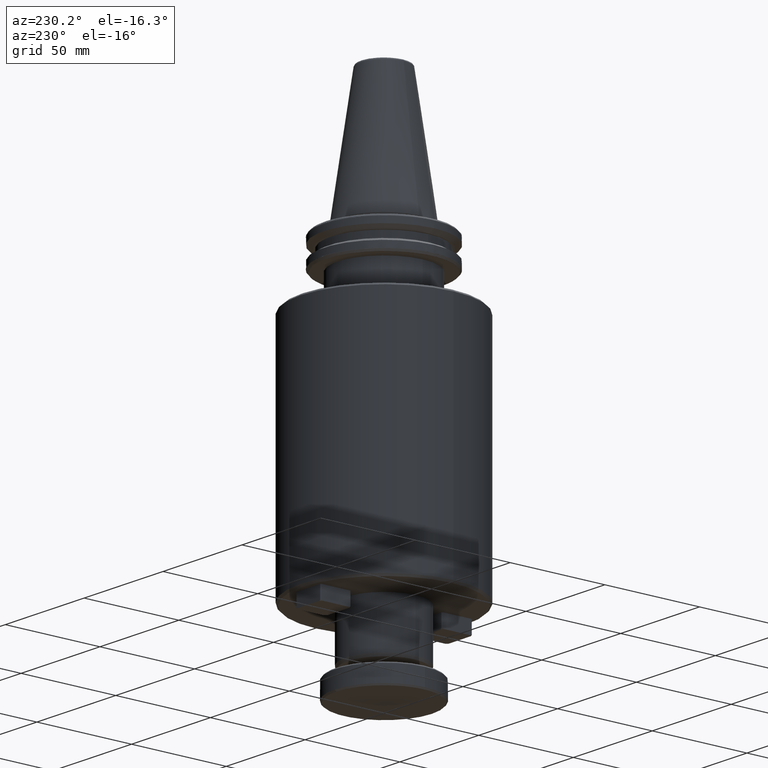
[diagram: clean part render]
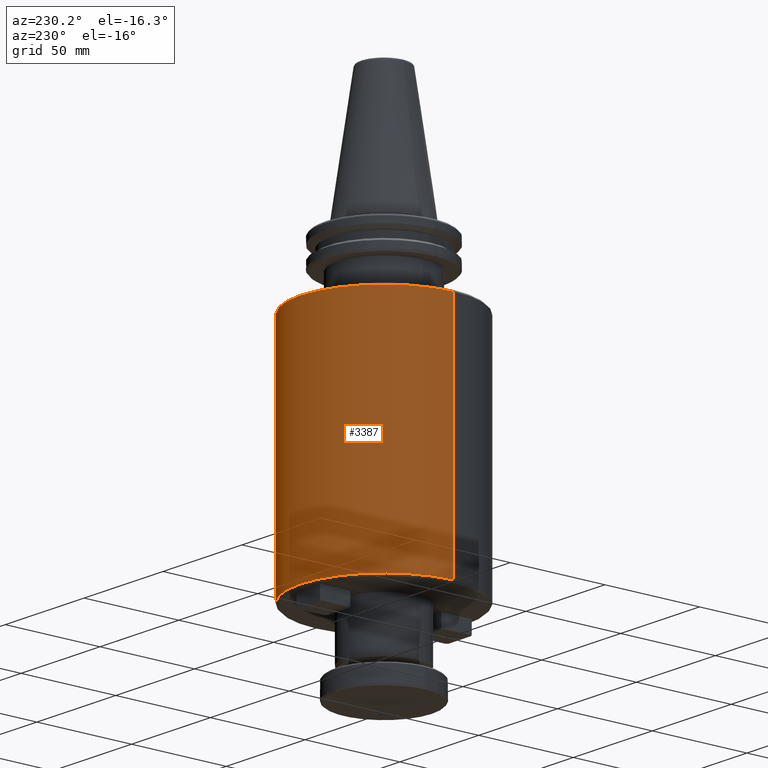
[diagram: same view with one face highlighted and labeled with its STEP entity id]
A machine part, auxiliary view. The second image highlights one B-rep face of the part: STEP entity #3387.
In plain terms, the highlighted cylindrical surface (partial cylindrical patch) has radius 44 mm, axis along (0, 0, 1).
Its self-contained STEP definition (entity closure, byte-faithful):
#211 = CYLINDRICAL_SURFACE ( 'NONE', #654, 44.00000000000000000 ) ;
#320 = CIRCLE ( 'NONE', #1110, 44.00000000000000000 ) ;
#469 = LINE ( 'NONE', #2066, #1126 ) ;
#535 = EDGE_CURVE ( 'NONE', #3262, #1514, #3945, .T. ) ;
#625 = DIRECTION ( 'NONE',  ( 0.0000000000000000000, 0.0000000000000000000, 1.000000000000000000 ) ) ;
#654 = AXIS2_PLACEMENT_3D ( 'NONE', #2881, #1214, #2553 ) ;
#673 = EDGE_CURVE ( 'NONE', #926, #1514, #320, .T. ) ;
#926 = VERTEX_POINT ( 'NONE', #3202 ) ;
#945 = AXIS2_PLACEMENT_3D ( 'NONE', #2651, #625, #2979 ) ;
#1095 = EDGE_LOOP ( 'NONE', ( #3398, #1834, #2340, #4142 ) ) ;
#1110 = AXIS2_PLACEMENT_3D ( 'NONE', #4039, #4032, #3821 ) ;
#1126 = VECTOR ( 'NONE', #3044, 1000.000000000000000 ) ;
#1214 = DIRECTION ( 'NONE',  ( 0.0000000000000000000, 0.0000000000000000000, 1.000000000000000000 ) ) ;
#1486 = VERTEX_POINT ( 'NONE', #1693 ) ;
#1514 = VERTEX_POINT ( 'NONE', #1673 ) ;
#1673 = CARTESIAN_POINT ( 'NONE',  ( 44.00000000000000000, 5.388445916248353600E-015, -37.00000000000000700 ) ) ;
#1693 = CARTESIAN_POINT ( 'NONE',  ( -44.00000000000001400, 5.388445916248355200E-015, -159.0000000000000000 ) ) ;
#1834 = ORIENTED_EDGE ( 'NONE', *, *, #3906, .T. ) ;
#2066 = CARTESIAN_POINT ( 'NONE',  ( -44.00000000000000000, 5.388445916248353600E-015, 82.95681253582424100 ) ) ;
#2340 = ORIENTED_EDGE ( 'NONE', *, *, #673, .T. ) ;
#2553 = DIRECTION ( 'NONE',  ( 1.000000000000000000, 0.0000000000000000000, 0.0000000000000000000 ) ) ;
#2651 = CARTESIAN_POINT ( 'NONE',  ( 0.0000000000000000000, 0.0000000000000000000, -159.0000000000000000 ) ) ;
#2881 = CARTESIAN_POINT ( 'NONE',  ( 0.0000000000000000000, 0.0000000000000000000, 82.95681253582424100 ) ) ;
#2979 = DIRECTION ( 'NONE',  ( 1.000000000000000000, 0.0000000000000000000, 0.0000000000000000000 ) ) ;
#3044 = DIRECTION ( 'NONE',  ( 0.0000000000000000000, 0.0000000000000000000, 1.000000000000000000 ) ) ;
#3045 = CIRCLE ( 'NONE', #945, 44.00000000000000000 ) ;
#3149 = CARTESIAN_POINT ( 'NONE',  ( 44.00000000000001400, 0.0000000000000000000, -159.0000000000000000 ) ) ;
#3202 = CARTESIAN_POINT ( 'NONE',  ( -44.00000000000000000, 0.0000000000000000000, -37.00000000000000700 ) ) ;
#3262 = VERTEX_POINT ( 'NONE', #3149 ) ;
#3387 = ADVANCED_FACE ( 'NONE', ( #4276 ), #211, .T. ) ;
#3398 = ORIENTED_EDGE ( 'NONE', *, *, #4286, .T. ) ;
#3563 = CARTESIAN_POINT ( 'NONE',  ( 44.00000000000000000, 0.0000000000000000000, 82.95681253582424100 ) ) ;
#3821 = DIRECTION ( 'NONE',  ( 1.000000000000000000, 0.0000000000000000000, 0.0000000000000000000 ) ) ;
#3888 = DIRECTION ( 'NONE',  ( 0.0000000000000000000, 0.0000000000000000000, 1.000000000000000000 ) ) ;
#3906 = EDGE_CURVE ( 'NONE', #1486, #926, #469, .T. ) ;
#3945 = LINE ( 'NONE', #3563, #4128 ) ;
#4032 = DIRECTION ( 'NONE',  ( -0.0000000000000000000, -0.0000000000000000000, -1.000000000000000000 ) ) ;
#4039 = CARTESIAN_POINT ( 'NONE',  ( 0.0000000000000000000, 0.0000000000000000000, -37.00000000000000700 ) ) ;
#4128 = VECTOR ( 'NONE', #3888, 1000.000000000000000 ) ;
#4142 = ORIENTED_EDGE ( 'NONE', *, *, #535, .F. ) ;
#4276 = FACE_OUTER_BOUND ( 'NONE', #1095, .T. ) ;
#4286 = EDGE_CURVE ( 'NONE', #3262, #1486, #3045, .T. ) ;